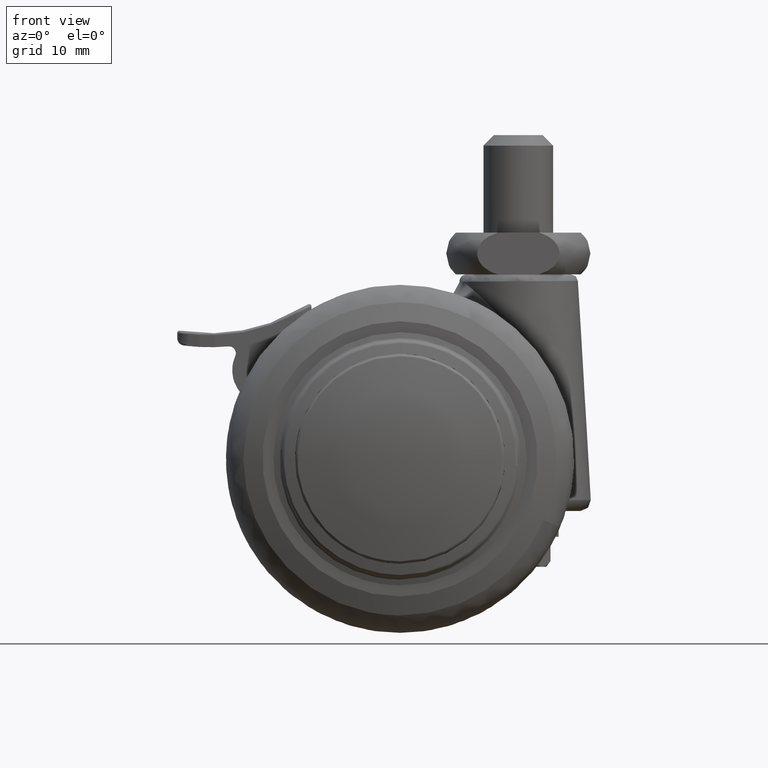
[diagram: clean part render]
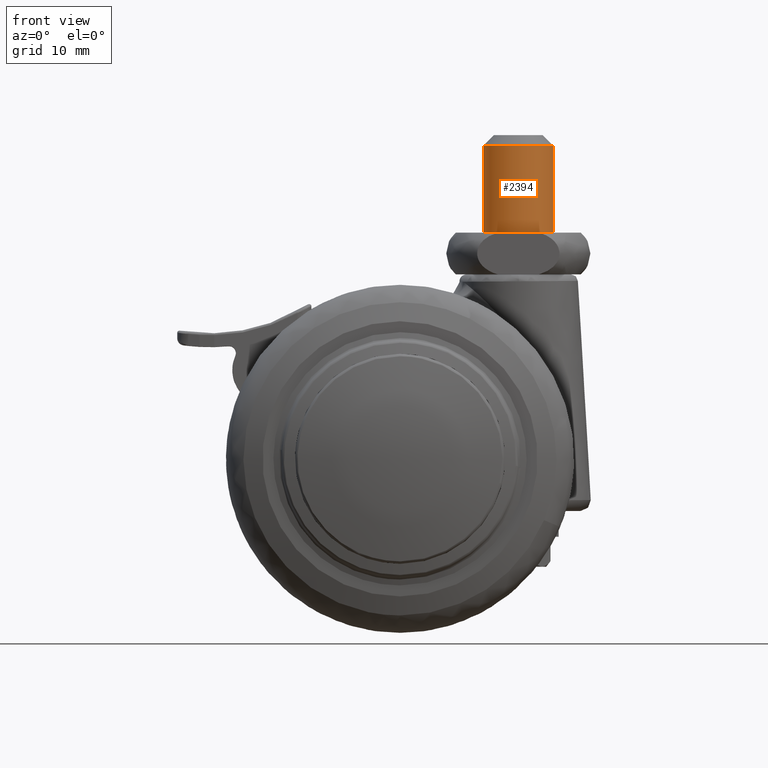
[diagram: same view with one face highlighted and labeled with its STEP entity id]
A machine part, front view. The second image highlights one B-rep face of the part: STEP entity #2394.
In plain terms, the highlighted face is a freeform B-spline surface patch.
Its self-contained STEP definition (entity closure, byte-faithful):
#2224=CARTESIAN_POINT('',(21.871090765892841,1.128040225538207,45.312499999936918));
#2225=CARTESIAN_POINT('',(22.004988801000824,0.549843218357491,45.312499999936939));
#2226=CARTESIAN_POINT('',(21.999809615320739,-0.043632677491872,45.312499999936932));
#2227=CARTESIAN_POINT('',(21.956176937828882,-5.043442292812618,45.312499999936925));
#2228=CARTESIAN_POINT('',(16.956367322508129,-4.999809615320748,45.312499999936932));
#2229=CARTESIAN_POINT('',(11.956557707187388,-4.956176937828880,45.312499999936925));
#2230=CARTESIAN_POINT('',(12.000190384679261,0.043632677491865,45.312499999936932));
#2231=CARTESIAN_POINT('',(12.043823062171123,5.043442292812609,45.312499999936925));
#2232=CARTESIAN_POINT('',(17.043632677491871,4.999809615320741,45.312499999936932));
#2233=CARTESIAN_POINT('',(21.871090765892841,1.128040225538207,32.179687502587548));
#2234=CARTESIAN_POINT('',(22.004988801000824,0.549843218357491,32.179687502587541));
#2235=CARTESIAN_POINT('',(21.999809615320739,-0.043632677491872,32.179687502587541));
#2236=CARTESIAN_POINT('',(21.956176937828882,-5.043442292812618,32.179687502587541));
#2237=CARTESIAN_POINT('',(16.956367322508129,-4.999809615320748,32.179687502587541));
#2238=CARTESIAN_POINT('',(11.956557707187388,-4.956176937828880,32.179687502587541));
#2239=CARTESIAN_POINT('',(12.000190384679261,0.043632677491865,32.179687502587541));
#2240=CARTESIAN_POINT('',(12.043823062171123,5.043442292812609,32.179687502587541));
#2241=CARTESIAN_POINT('',(17.043632677491871,4.999809615320741,32.179687502587541));
#2249=(BOUNDED_SURFACE()B_SPLINE_SURFACE(2,1,((#2224,#2233),(#2225,#2234),(#2226,#2235),(#2227,#2236),(#2228,#2237),(#2229,#2238),(#2230,#2239),(#2231,#2240),(#2232,#2241)),.UNSPECIFIED.,.F.,.F.,.U.)B_SPLINE_SURFACE_WITH_KNOTS((3,2,2,2,3),(2,2),(0.0,1.325483399593876,9.609754647055596,17.894025894517320,26.178297141979030),(0.0,13.132812497349400),.UNSPECIFIED.)GEOMETRIC_REPRESENTATION_ITEM()RATIONAL_B_SPLINE_SURFACE(((0.921270302782944,0.921270302782944),(0.953137084989848,0.953137084989848),(1.0,1.0),(0.707106781186548,0.707106781186548),(1.0,1.0),(0.707106781186548,0.707106781186548),(1.0,1.0),(0.707106781186548,0.707106781186548),(1.0,1.0)))REPRESENTATION_ITEM('')SURFACE());
#2250=CARTESIAN_POINT('',(21.871090765876222,1.128040225610034,45.0));
#2251=VERTEX_POINT('',#2250);
#2252=CARTESIAN_POINT('',(21.999999999999890,-3.459513E-015,45.0));
#2253=VERTEX_POINT('',#2252);
#2254=CARTESIAN_POINT('',(21.871090765876218,1.128040225610035,45.0));
#2255=CARTESIAN_POINT('',(21.999999999999890,0.571385803473369,44.999999999999993));
#2256=CARTESIAN_POINT('',(21.999999999999890,-3.459513E-015,45.0));
#2264=(BOUNDED_CURVE()B_SPLINE_CURVE(2,(#2254,#2255,#2256),.UNSPECIFIED.,.F.,.U.)B_SPLINE_CURVE_WITH_KNOTS((3,3),(0.461422971779794,0.500000000000000),.UNSPECIFIED.)CURVE()GEOMETRIC_REPRESENTATION_ITEM()RATIONAL_B_SPLINE_CURVE((0.923556557434985,0.954804200129306,1.0))REPRESENTATION_ITEM(''));
#2265=EDGE_CURVE('',#2251,#2253,#2264,.T.);
#2266=ORIENTED_EDGE('',*,*,#2265,.T.);
#2267=CARTESIAN_POINT('',(17.305242698021210,-4.990673992133620,44.999999999954468));
#2268=VERTEX_POINT('',#2267);
#2269=CARTESIAN_POINT('',(21.999999999999890,-3.459513E-015,45.0));
#2270=CARTESIAN_POINT('',(21.999999999999890,-4.703530333878448,45.000000000000007));
#2271=CARTESIAN_POINT('',(17.305242698021214,-4.990673992133620,44.999999999954468));
#2279=(BOUNDED_CURVE()B_SPLINE_CURVE(2,(#2269,#2270,#2271),.UNSPECIFIED.,.F.,.U.)B_SPLINE_CURVE_WITH_KNOTS((3,3),(0.500000000000000,0.739332962218171),.UNSPECIFIED.)CURVE()GEOMETRIC_REPRESENTATION_ITEM()RATIONAL_B_SPLINE_CURVE((1.0,0.719603993311046,0.976072041622199))REPRESENTATION_ITEM(''));
#2280=EDGE_CURVE('',#2253,#2268,#2279,.T.);
#2281=ORIENTED_EDGE('',*,*,#2280,.T.);
#2282=CARTESIAN_POINT('',(12.000000000000110,-3.459513E-015,45.0));
#2283=VERTEX_POINT('',#2282);
#2284=CARTESIAN_POINT('',(17.305242698021210,-4.990673992133620,44.999999999954476));
#2285=CARTESIAN_POINT('',(17.152763816838053,-4.999999999999894,45.000000000000007));
#2286=CARTESIAN_POINT('',(17.0,-4.999999999999893,45.0));
#2287=CARTESIAN_POINT('',(12.000000000000114,-4.999999999999893,45.000000000000007));
#2288=CARTESIAN_POINT('',(12.000000000000110,-3.459513E-015,45.0));
#2296=(BOUNDED_CURVE()B_SPLINE_CURVE(2,(#2284,#2285,#2286,#2287,#2288),.UNSPECIFIED.,.F.,.U.)B_SPLINE_CURVE_WITH_KNOTS((3,2,3),(0.739332962218171,0.750000000000000,1.0),.UNSPECIFIED.)CURVE()GEOMETRIC_REPRESENTATION_ITEM()RATIONAL_B_SPLINE_CURVE((0.976072041622200,0.987502787875502,1.0,0.707106781186547,1.0))REPRESENTATION_ITEM(''));
#2297=EDGE_CURVE('',#2268,#2283,#2296,.T.);
#2298=ORIENTED_EDGE('',*,*,#2297,.T.);
#2299=CARTESIAN_POINT('',(16.409828826421428,4.965047631820546,44.999999999962903));
#2300=VERTEX_POINT('',#2299);
#2301=CARTESIAN_POINT('',(12.000000000000110,-3.459513E-015,45.0));
#2302=CARTESIAN_POINT('',(12.000000000000114,4.440872629233590,45.000000000000014));
#2303=CARTESIAN_POINT('',(16.409828826421435,4.965047631820546,44.999999999962895));
#2311=(BOUNDED_CURVE()B_SPLINE_CURVE(2,(#2301,#2302,#2303),.UNSPECIFIED.,.F.,.U.)B_SPLINE_CURVE_WITH_KNOTS((3,3),(0.0,0.229562473495874),.UNSPECIFIED.)CURVE()GEOMETRIC_REPRESENTATION_ITEM()RATIONAL_B_SPLINE_CURVE((1.0,0.731050832876062,0.956026754149136))REPRESENTATION_ITEM(''));
#2312=EDGE_CURVE('',#2283,#2300,#2311,.T.);
#2313=ORIENTED_EDGE('',*,*,#2312,.T.);
#2314=CARTESIAN_POINT('',(17.043632677746551,4.999809615318519,45.000000000000007));
#2315=VERTEX_POINT('',#2314);
#2316=CARTESIAN_POINT('',(16.409828826421439,4.965047631820546,44.999999999962895));
#2317=CARTESIAN_POINT('',(16.703879401446983,4.999999999999886,45.000000000000007));
#2318=CARTESIAN_POINT('',(17.0,4.999999999999886,45.0));
#2319=CARTESIAN_POINT('',(17.021816754358202,4.999999999999886,44.999999999999993));
#2320=CARTESIAN_POINT('',(17.043632677746547,4.999809615318519,45.000000000000014));
#2328=(BOUNDED_CURVE()B_SPLINE_CURVE(2,(#2316,#2317,#2318,#2319,#2320),.UNSPECIFIED.,.F.,.U.)B_SPLINE_CURVE_WITH_KNOTS((3,2,3),(0.229562473495874,0.250000000000000,0.251539894352932),.UNSPECIFIED.)CURVE()GEOMETRIC_REPRESENTATION_ITEM()RATIONAL_B_SPLINE_CURVE((0.956026754149136,0.976055948310485,1.0,0.998195901545348,0.996414028058876))REPRESENTATION_ITEM(''));
#2329=EDGE_CURVE('',#2300,#2315,#2328,.T.);
#2330=ORIENTED_EDGE('',*,*,#2329,.T.);
#2331=CARTESIAN_POINT('',(17.043632677626320,4.999809615319569,32.500000002522903));
#2332=VERTEX_POINT('',#2331);
#2333=CARTESIAN_POINT('',(17.043632677746551,4.999809615318519,45.000000000000007));
#2334=CARTESIAN_POINT('',(17.043632677626320,4.999809615319569,32.500000002522903));
#2335=QUASI_UNIFORM_CURVE('',1,(#2333,#2334),.UNSPECIFIED.,.F.,.U.);
#2336=EDGE_CURVE('',#2315,#2332,#2335,.T.);
#2337=ORIENTED_EDGE('',*,*,#2336,.T.);
#2338=CARTESIAN_POINT('',(12.000000000000110,-3.459513E-015,32.500000002522903));
#2339=VERTEX_POINT('',#2338);
#2340=CARTESIAN_POINT('',(17.043632677626320,4.999809615319569,32.500000002522903));
#2341=CARTESIAN_POINT('',(17.021816754237971,4.999999999999887,32.500000002522896));
#2342=CARTESIAN_POINT('',(17.0,4.999999999999886,32.500000002522903));
#2343=CARTESIAN_POINT('',(12.000000000000114,4.999999999999886,32.500000002522910));
#2344=CARTESIAN_POINT('',(12.000000000000110,-3.459513E-015,32.500000002522903));
#2352=(BOUNDED_CURVE()B_SPLINE_CURVE(2,(#2340,#2341,#2342,#2343,#2344),.UNSPECIFIED.,.F.,.U.)B_SPLINE_CURVE_WITH_KNOTS((3,2,3),(0.248460105655539,0.250000000000000,0.500000000000000),.UNSPECIFIED.)CURVE()GEOMETRIC_REPRESENTATION_ITEM()RATIONAL_B_SPLINE_CURVE((0.996414028078481,0.998195901555273,1.0,0.707106781186547,1.0))REPRESENTATION_ITEM(''));
#2353=EDGE_CURVE('',#2332,#2339,#2352,.T.);
#2354=ORIENTED_EDGE('',*,*,#2353,.T.);
#2355=CARTESIAN_POINT('',(21.999999999999890,-3.459513E-015,32.500000002522903));
#2356=VERTEX_POINT('',#2355);
#2357=CARTESIAN_POINT('',(12.000000000000110,-3.459513E-015,32.500000002522903));
#2358=CARTESIAN_POINT('',(12.000000000000114,-4.999999999999893,32.500000002522910));
#2359=CARTESIAN_POINT('',(17.0,-4.999999999999893,32.500000002522903));
#2360=CARTESIAN_POINT('',(21.999999999999897,-4.999999999999893,32.500000002522910));
#2361=CARTESIAN_POINT('',(21.999999999999890,-3.459513E-015,32.500000002522903));
#2369=(BOUNDED_CURVE()B_SPLINE_CURVE(2,(#2357,#2358,#2359,#2360,#2361),.UNSPECIFIED.,.F.,.U.)B_SPLINE_CURVE_WITH_KNOTS((3,2,3),(0.500000000000000,0.750000000000000,1.0),.UNSPECIFIED.)CURVE()GEOMETRIC_REPRESENTATION_ITEM()RATIONAL_B_SPLINE_CURVE((1.0,0.707106781186547,1.0,0.707106781186547,1.0))REPRESENTATION_ITEM(''));
#2370=EDGE_CURVE('',#2339,#2356,#2369,.T.);
#2371=ORIENTED_EDGE('',*,*,#2370,.T.);
#2372=CARTESIAN_POINT('',(21.871090765885970,1.128040225567900,32.500000002522903));
#2373=VERTEX_POINT('',#2372);
#2374=CARTESIAN_POINT('',(21.999999999999890,-3.459513E-015,32.500000002522903));
#2375=CARTESIAN_POINT('',(21.999999999999890,0.571385803429555,32.500000002522896));
#2376=CARTESIAN_POINT('',(21.871090765885977,1.128040225567900,32.500000002522910));
#2384=(BOUNDED_CURVE()B_SPLINE_CURVE(2,(#2374,#2375,#2376),.UNSPECIFIED.,.F.,.U.)B_SPLINE_CURVE_WITH_KNOTS((3,3),(0.0,0.038577028217381),.UNSPECIFIED.)CURVE()GEOMETRIC_REPRESENTATION_ITEM()RATIONAL_B_SPLINE_CURVE((1.0,0.954804200132615,0.923556557439560))REPRESENTATION_ITEM(''));
#2385=EDGE_CURVE('',#2356,#2373,#2384,.T.);
#2386=ORIENTED_EDGE('',*,*,#2385,.T.);
#2387=CARTESIAN_POINT('',(21.871090765876222,1.128040225610034,45.0));
#2388=CARTESIAN_POINT('',(21.871090765885970,1.128040225567900,32.500000002522903));
#2389=QUASI_UNIFORM_CURVE('',1,(#2387,#2388),.UNSPECIFIED.,.F.,.U.);
#2390=EDGE_CURVE('',#2251,#2373,#2389,.T.);
#2391=ORIENTED_EDGE('',*,*,#2390,.F.);
#2392=EDGE_LOOP('',(#2266,#2281,#2298,#2313,#2330,#2337,#2354,#2371,#2386,#2391));
#2393=FACE_OUTER_BOUND('',#2392,.T.);
#2394=ADVANCED_FACE('',(#2393),#2249,.T.);